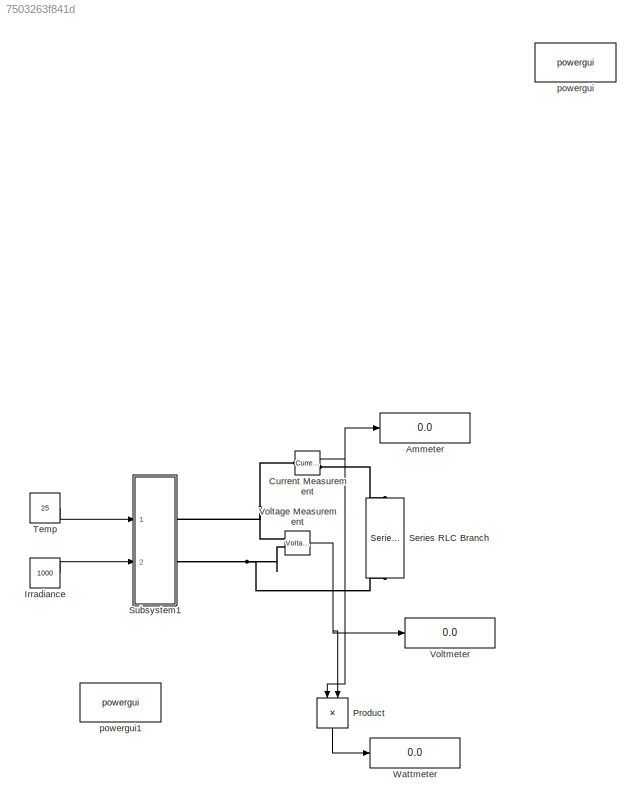
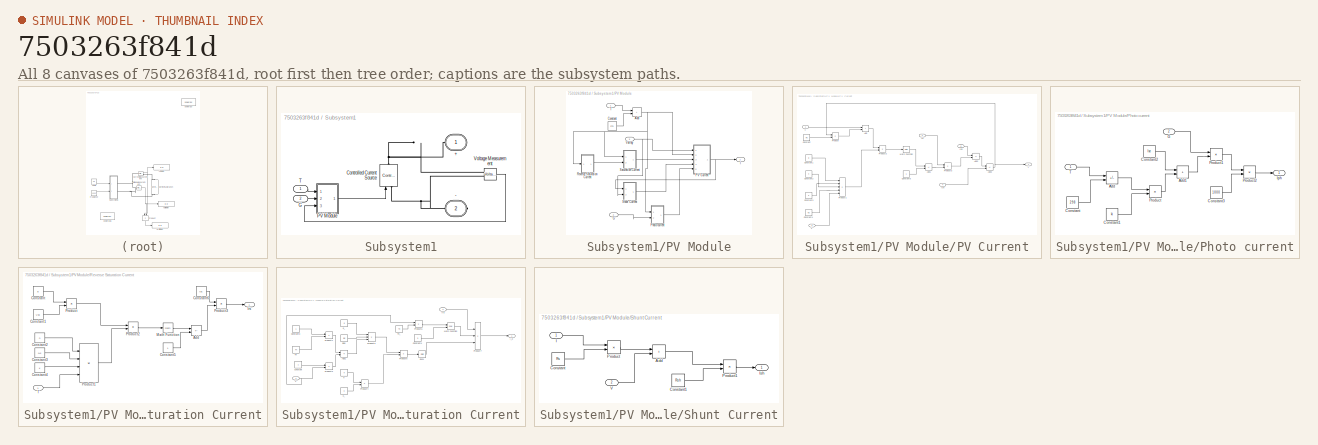
[diagram: thumbnail index - all 8 canvases of the model, root first then tree order]
MODEL slx_7503263f841d
KIND model
CONFIG AbsTol = auto
CONFIG EnableMultiTasking = off
CONFIG FixedStep = auto
CONFIG MaxStep = auto
CONFIG MinStep = auto
CONFIG RelTol = 1e-3
CONFIG SampleTimeConstraint = Unconstrained
CONFIG Solver = VariableStepAuto
CONFIG SolverName = VariableStepAuto
CONFIG StartTime = 0.0
CONFIG StopTime = 10.0
BLOCK [Display] Ammeter
  Decimation = 1
  Ports = [1]
BLOCK [Reference] Current Measurement  REF=powerlib/Measurements/Current Measurement
  Ports = [0, 1, 0, 0, 0, 1, 1]
  SourceBlock = powerlib/Measurements/Current Measurement
  SourceProductBaseCode = PS
  SourceType = Current Measurement
  UserDataPersistent = on
BLOCK [Constant] Irradiance
  Value = 1000
BLOCK [Product] Product
  NameLocation = left
  Ports = [2, 1]
BLOCK [Reference] Series RLC Branch  REF=powerlib/Elements/Series RLC Branch
  NameLocation = left
  Ports = [0, 0, 0, 0, 0, 1, 1]
  SourceBlock = powerlib/Elements/Series RLC Branch
  SourceProductBaseCode = PS
  SourceType = Series RLC Branch
BLOCK [SubSystem] Subsystem1
  Ports = [2, 0, 0, 0, 0, 0, 2]
  RequestExecContextInheritance = off
BLOCK [PMIOPort] Subsystem1/+
  NameLocation = top
  Side = Right
BLOCK [PMIOPort] Subsystem1/-
  NameLocation = top
  Port = 2
  Side = Right
BLOCK [Reference] Subsystem1/Controlled Current Source  REF=powerlib/Electrical
Sources/Controlled Current Source
  NameLocation = right
  Ports = [1, 0, 0, 0, 0, 1, 1]
  SourceBlock = powerlib/Electrical\nSources/Controlled Current Source
  SourceProductBaseCode = PS
  SourceType = Controlled Current Source
BLOCK [Inport] Subsystem1/G
  Port = 2
BLOCK [SubSystem] Subsystem1/PV Module
  Ports = [3, 1]
  RequestExecContextInheritance = off
BLOCK [Sum] Subsystem1/PV Module/Add
  IconShape = rectangular
  Ports = [2, 1]
BLOCK [Constant] Subsystem1/PV Module/Constant
  Value = 273
BLOCK [Inport] Subsystem1/PV Module/G
  Port = 2
BLOCK [Outport] Subsystem1/PV Module/I
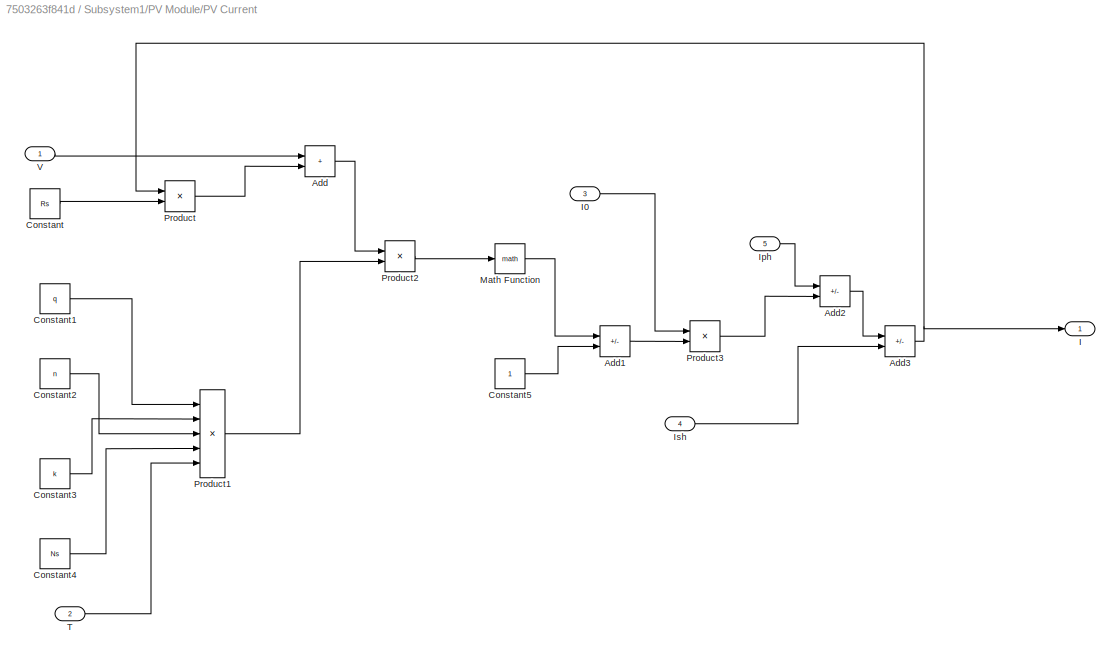
BLOCK [SubSystem] Subsystem1/PV Module/PV Current
  Ports = [5, 1]
  RequestExecContextInheritance = off
BLOCK [Sum] Subsystem1/PV Module/PV Current/Add
  IconShape = rectangular
  Ports = [2, 1]
BLOCK [Sum] Subsystem1/PV Module/PV Current/Add1
  IconShape = rectangular
  Inputs = +-
  Ports = [2, 1]
BLOCK [Sum] Subsystem1/PV Module/PV Current/Add2
  IconShape = rectangular
  Inputs = +-
  Ports = [2, 1]
BLOCK [Sum] Subsystem1/PV Module/PV Current/Add3
  IconShape = rectangular
  Inputs = +-
  Ports = [2, 1]
BLOCK [Constant] Subsystem1/PV Module/PV Current/Constant
  Value = Rs
BLOCK [Constant] Subsystem1/PV Module/PV Current/Constant1
  Value = q
BLOCK [Constant] Subsystem1/PV Module/PV Current/Constant2
  Value = n
BLOCK [Constant] Subsystem1/PV Module/PV Current/Constant3
  Value = k
BLOCK [Constant] Subsystem1/PV Module/PV Current/Constant4
  Value = Ns
BLOCK [Constant] Subsystem1/PV Module/PV Current/Constant5
BLOCK [Outport] Subsystem1/PV Module/PV Current/I
BLOCK [Inport] Subsystem1/PV Module/PV Current/I0
  Port = 3
BLOCK [Inport] Subsystem1/PV Module/PV Current/Iph
  Port = 5
BLOCK [Inport] Subsystem1/PV Module/PV Current/Ish
  Port = 4
BLOCK [Math] Subsystem1/PV Module/PV Current/Math Function
  Ports = [1, 1]
BLOCK [Product] Subsystem1/PV Module/PV Current/Product
  Ports = [2, 1]
BLOCK [Product] Subsystem1/PV Module/PV Current/Product1
  Inputs = *////
  Ports = [5, 1]
BLOCK [Product] Subsystem1/PV Module/PV Current/Product2
  Ports = [2, 1]
BLOCK [Product] Subsystem1/PV Module/PV Current/Product3
  Ports = [2, 1]
BLOCK [Inport] Subsystem1/PV Module/PV Current/T
  Port = 2
BLOCK [Inport] Subsystem1/PV Module/PV Current/V
BLOCK [SubSystem] Subsystem1/PV Module/Photo current
  Ports = [2, 1]
  RequestExecContextInheritance = off
BLOCK [Sum] Subsystem1/PV Module/Photo current/Add
  IconShape = rectangular
  Inputs = +-
  Ports = [2, 1]
BLOCK [Sum] Subsystem1/PV Module/Photo current/Add1
  IconShape = rectangular
  Ports = [2, 1]
BLOCK [Constant] Subsystem1/PV Module/Photo current/Constant
  Value = 298
BLOCK [Constant] Subsystem1/PV Module/Photo current/Constant1
  Value = ki
BLOCK [Constant] Subsystem1/PV Module/Photo current/Constant2
  Value = Isc
BLOCK [Constant] Subsystem1/PV Module/Photo current/Constant3
  Value = 1000
BLOCK [Inport] Subsystem1/PV Module/Photo current/G
  Port = 2
BLOCK [Outport] Subsystem1/PV Module/Photo current/Iph
BLOCK [Product] Subsystem1/PV Module/Photo current/Product
  Ports = [2, 1]
BLOCK [Product] Subsystem1/PV Module/Photo current/Product1
  Ports = [2, 1]
BLOCK [Product] Subsystem1/PV Module/Photo current/Product2
  Inputs = */
  Ports = [2, 1]
BLOCK [Inport] Subsystem1/PV Module/Photo current/T
BLOCK [SubSystem] Subsystem1/PV Module/Reverse Saturation Current
  Ports = [1, 1]
  RequestExecContextInheritance = off
BLOCK [Sum] Subsystem1/PV Module/Reverse Saturation Current/Add
  IconShape = rectangular
  Inputs = +-
  Ports = [2, 1]
BLOCK [Constant] Subsystem1/PV Module/Reverse Saturation Current/Constant
  Value = q
BLOCK [Constant] Subsystem1/PV Module/Reverse Saturation Current/Constant1
  Value = Voc
BLOCK [Constant] Subsystem1/PV Module/Reverse Saturation Current/Constant2
  Value = n
BLOCK [Constant] Subsystem1/PV Module/Reverse Saturation Current/Constant3
  Value = Ns
BLOCK [Constant] Subsystem1/PV Module/Reverse Saturation Current/Constant4
  Value = k
BLOCK [Constant] Subsystem1/PV Module/Reverse Saturation Current/Constant5
BLOCK [Constant] Subsystem1/PV Module/Reverse Saturation Current/Constant6
  Value = Isc
BLOCK [Outport] Subsystem1/PV Module/Reverse Saturation Current/Irs
BLOCK [Math] Subsystem1/PV Module/Reverse Saturation Current/Math Function
  Ports = [1, 1]
BLOCK [Product] Subsystem1/PV Module/Reverse Saturation Current/Product
  Ports = [2, 1]
BLOCK [Product] Subsystem1/PV Module/Reverse Saturation Current/Product1
  Inputs = 4
  Ports = [4, 1]
BLOCK [Product] Subsystem1/PV Module/Reverse Saturation Current/Product2
  Inputs = */
  Ports = [2, 1]
BLOCK [Product] Subsystem1/PV Module/Reverse Saturation Current/Product3
  Inputs = */
  Ports = [2, 1]
BLOCK [Inport] Subsystem1/PV Module/Reverse Saturation Current/T
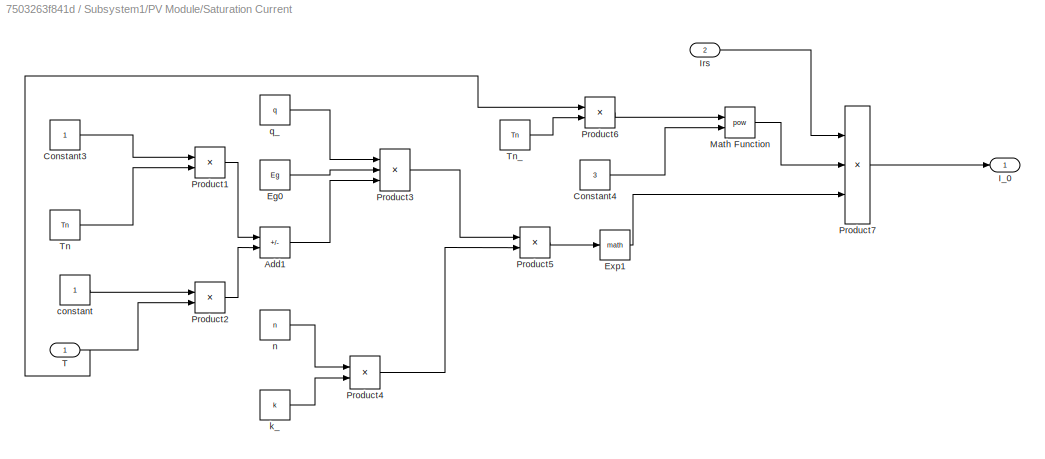
BLOCK [SubSystem] Subsystem1/PV Module/Saturation Current
  Ports = [2, 1]
  RequestExecContextInheritance = off
BLOCK [Sum] Subsystem1/PV Module/Saturation Current/Add1
  IconShape = rectangular
  Inputs = +-
  Ports = [2, 1]
BLOCK [Constant] Subsystem1/PV Module/Saturation Current/Constant3
BLOCK [Constant] Subsystem1/PV Module/Saturation Current/Constant4
  Value = 3
BLOCK [Constant] Subsystem1/PV Module/Saturation Current/Eg0
  Value = Eg
BLOCK [Math] Subsystem1/PV Module/Saturation Current/Exp1
  Ports = [1, 1]
BLOCK [Outport] Subsystem1/PV Module/Saturation Current/I_0
BLOCK [Inport] Subsystem1/PV Module/Saturation Current/Irs
  Port = 2
BLOCK [Math] Subsystem1/PV Module/Saturation Current/Math Function
  Operator = pow
  Ports = [2, 1]
BLOCK [Product] Subsystem1/PV Module/Saturation Current/Product1
  Inputs = */
  Ports = [2, 1]
BLOCK [Product] Subsystem1/PV Module/Saturation Current/Product2
  Inputs = */
  Ports = [2, 1]
BLOCK [Product] Subsystem1/PV Module/Saturation Current/Product3
  Inputs = ***
  Ports = [3, 1]
BLOCK [Product] Subsystem1/PV Module/Saturation Current/Product4
  Inputs = **
  Ports = [2, 1]
BLOCK [Product] Subsystem1/PV Module/Saturation Current/Product5
  Inputs = */
  Ports = [2, 1]
BLOCK [Product] Subsystem1/PV Module/Saturation Current/Product6
  Inputs = */
  Ports = [2, 1]
BLOCK [Product] Subsystem1/PV Module/Saturation Current/Product7
  Inputs = 3
  Ports = [3, 1]
BLOCK [Inport] Subsystem1/PV Module/Saturation Current/T
BLOCK [Constant] Subsystem1/PV Module/Saturation Current/Tn
  Value = Tn
BLOCK [Constant] Subsystem1/PV Module/Saturation Current/Tn_
  Value = Tn
BLOCK [Constant] Subsystem1/PV Module/Saturation Current/constant
BLOCK [Constant] Subsystem1/PV Module/Saturation Current/k_
  Value = k
BLOCK [Constant] Subsystem1/PV Module/Saturation Current/n
  Value = n
BLOCK [Constant] Subsystem1/PV Module/Saturation Current/q_
  Value = q
BLOCK [SubSystem] Subsystem1/PV Module/Shunt Current
  Ports = [2, 1]
  RequestExecContextInheritance = off
BLOCK [Sum] Subsystem1/PV Module/Shunt Current/Add
  IconShape = rectangular
  Ports = [2, 1]
BLOCK [Constant] Subsystem1/PV Module/Shunt Current/Constant
  Value = Rs
BLOCK [Constant] Subsystem1/PV Module/Shunt Current/Constant1
  Value = Rsh
BLOCK [Inport] Subsystem1/PV Module/Shunt Current/I
BLOCK [Outport] Subsystem1/PV Module/Shunt Current/Ish
BLOCK [Product] Subsystem1/PV Module/Shunt Current/Product
  Ports = [2, 1]
BLOCK [Product] Subsystem1/PV Module/Shunt Current/Product1
  Inputs = */
  Ports = [2, 1]
BLOCK [Inport] Subsystem1/PV Module/Shunt Current/V
  Port = 2
BLOCK [Inport] Subsystem1/PV Module/T
BLOCK [Inport] Subsystem1/PV Module/Varray
  Port = 3
BLOCK [Inport] Subsystem1/T
BLOCK [Reference] Subsystem1/Voltage Measurement  REF=powerlib/Measurements/Voltage Measurement
  Ports = [0, 1, 0, 0, 0, 2]
  SourceBlock = powerlib/Measurements/Voltage Measurement
  SourceProductBaseCode = PS
  SourceType = Voltage Measurement
  UserDataPersistent = on
BLOCK [Constant] Temp
  Value = 25
BLOCK [Reference] Voltage Measurement  REF=powerlib/Measurements/Voltage Measurement
  Ports = [0, 1, 0, 0, 0, 2]
  SourceBlock = powerlib/Measurements/Voltage Measurement
  SourceProductBaseCode = PS
  SourceType = Voltage Measurement
  UserDataPersistent = on
BLOCK [Display] Voltmeter
  Decimation = 1
  Ports = [1]
BLOCK [Display] Wattmeter
  Decimation = 1
  Ports = [1]
BLOCK [Reference] powergui  REF=powerlib/powergui
  Ports = []
  Priority = 1
  SourceBlock = powerlib/powergui
  SourceProductBaseCode = PS
  SourceType = PSB option menu block
BLOCK [Reference] powergui1  REF=powerlib/powergui
  Ports = []
  Priority = 1
  SourceBlock = powerlib/powergui
  SourceProductBaseCode = PS
  SourceType = PSB option menu block
NET Current Measurement:1 -> Ammeter:1, Product:1
LINE Irradiance:1 -> Subsystem1:2
LINE Product:1 -> Wattmeter:1
LINE Subsystem1/G:1 -> Subsystem1/PV Module:2
NET Subsystem1/PV Module/Add:1 -> Subsystem1/PV Module/PV Current:2, Subsystem1/PV Module/Photo current:1, Subsystem1/PV Module/Reverse Saturation Current:1, Subsystem1/PV Module/Saturation Current:1
LINE Subsystem1/PV Module/Constant:1 -> Subsystem1/PV Module/Add:2
LINE Subsystem1/PV Module/G:1 -> Subsystem1/PV Module/Photo current:2
LINE Subsystem1/PV Module/PV Current/Add1:1 -> Subsystem1/PV Module/PV Current/Product3:2
LINE Subsystem1/PV Module/PV Current/Add2:1 -> Subsystem1/PV Module/PV Current/Add3:1
NET Subsystem1/PV Module/PV Current/Add3:1 -> Subsystem1/PV Module/PV Current/I:1, Subsystem1/PV Module/PV Current/Product:1
LINE Subsystem1/PV Module/PV Current/Add:1 -> Subsystem1/PV Module/PV Current/Product2:1
LINE Subsystem1/PV Module/PV Current/Constant1:1 -> Subsystem1/PV Module/PV Current/Product1:1
LINE Subsystem1/PV Module/PV Current/Constant2:1 -> Subsystem1/PV Module/PV Current/Product1:3
LINE Subsystem1/PV Module/PV Current/Constant3:1 -> Subsystem1/PV Module/PV Current/Product1:2
LINE Subsystem1/PV Module/PV Current/Constant4:1 -> Subsystem1/PV Module/PV Current/Product1:4
LINE Subsystem1/PV Module/PV Current/Constant5:1 -> Subsystem1/PV Module/PV Current/Add1:2
LINE Subsystem1/PV Module/PV Current/Constant:1 -> Subsystem1/PV Module/PV Current/Product:2
LINE Subsystem1/PV Module/PV Current/I0:1 -> Subsystem1/PV Module/PV Current/Product3:1
LINE Subsystem1/PV Module/PV Current/Iph:1 -> Subsystem1/PV Module/PV Current/Add2:1
LINE Subsystem1/PV Module/PV Current/Ish:1 -> Subsystem1/PV Module/PV Current/Add3:2
LINE Subsystem1/PV Module/PV Current/Math Function:1 -> Subsystem1/PV Module/PV Current/Add1:1
LINE Subsystem1/PV Module/PV Current/Product1:1 -> Subsystem1/PV Module/PV Current/Product2:2
LINE Subsystem1/PV Module/PV Current/Product2:1 -> Subsystem1/PV Module/PV Current/Math Function:1
LINE Subsystem1/PV Module/PV Current/Product3:1 -> Subsystem1/PV Module/PV Current/Add2:2
LINE Subsystem1/PV Module/PV Current/Product:1 -> Subsystem1/PV Module/PV Current/Add:2
LINE Subsystem1/PV Module/PV Current/T:1 -> Subsystem1/PV Module/PV Current/Product1:5
LINE Subsystem1/PV Module/PV Current/V:1 -> Subsystem1/PV Module/PV Current/Add:1
NET Subsystem1/PV Module/PV Current:1 -> Subsystem1/PV Module/I:1, Subsystem1/PV Module/Shunt Current:1
LINE Subsystem1/PV Module/Photo current/Add1:1 -> Subsystem1/PV Module/Photo current/Product1:2
LINE Subsystem1/PV Module/Photo current/Add:1 -> Subsystem1/PV Module/Photo current/Product:1
LINE Subsystem1/PV Module/Photo current/Constant1:1 -> Subsystem1/PV Module/Photo current/Product:2
LINE Subsystem1/PV Module/Photo current/Constant2:1 -> Subsystem1/PV Module/Photo current/Add1:1
LINE Subsystem1/PV Module/Photo current/Constant3:1 -> Subsystem1/PV Module/Photo current/Product2:2
LINE Subsystem1/PV Module/Photo current/Constant:1 -> Subsystem1/PV Module/Photo current/Add:2
LINE Subsystem1/PV Module/Photo current/G:1 -> Subsystem1/PV Module/Photo current/Product1:1
LINE Subsystem1/PV Module/Photo current/Product1:1 -> Subsystem1/PV Module/Photo current/Product2:1
LINE Subsystem1/PV Module/Photo current/Product2:1 -> Subsystem1/PV Module/Photo current/Iph:1
LINE Subsystem1/PV Module/Photo current/Product:1 -> Subsystem1/PV Module/Photo current/Add1:2
LINE Subsystem1/PV Module/Photo current/T:1 -> Subsystem1/PV Module/Photo current/Add:1
LINE Subsystem1/PV Module/Photo current:1 -> Subsystem1/PV Module/PV Current:5
LINE Subsystem1/PV Module/Reverse Saturation Current/Add:1 -> Subsystem1/PV Module/Reverse Saturation Current/Product3:2
LINE Subsystem1/PV Module/Reverse Saturation Current/Constant1:1 -> Subsystem1/PV Module/Reverse Saturation Current/Product:2
LINE Subsystem1/PV Module/Reverse Saturation Current/Constant2:1 -> Subsystem1/PV Module/Reverse Saturation Current/Product1:1
LINE Subsystem1/PV Module/Reverse Saturation Current/Constant3:1 -> Subsystem1/PV Module/Reverse Saturation Current/Product1:2
LINE Subsystem1/PV Module/Reverse Saturation Current/Constant4:1 -> Subsystem1/PV Module/Reverse Saturation Current/Product1:3
LINE Subsystem1/PV Module/Reverse Saturation Current/Constant5:1 -> Subsystem1/PV Module/Reverse Saturation Current/Add:2
LINE Subsystem1/PV Module/Reverse Saturation Current/Constant6:1 -> Subsystem1/PV Module/Reverse Saturation Current/Product3:1
LINE Subsystem1/PV Module/Reverse Saturation Current/Constant:1 -> Subsystem1/PV Module/Reverse Saturation Current/Product:1
LINE Subsystem1/PV Module/Reverse Saturation Current/Math Function:1 -> Subsystem1/PV Module/Reverse Saturation Current/Add:1
LINE Subsystem1/PV Module/Reverse Saturation Current/Product1:1 -> Subsystem1/PV Module/Reverse Saturation Current/Product2:2
LINE Subsystem1/PV Module/Reverse Saturation Current/Product2:1 -> Subsystem1/PV Module/Reverse Saturation Current/Math Function:1
LINE Subsystem1/PV Module/Reverse Saturation Current/Product3:1 -> Subsystem1/PV Module/Reverse Saturation Current/Irs:1
LINE Subsystem1/PV Module/Reverse Saturation Current/Product:1 -> Subsystem1/PV Module/Reverse Saturation Current/Product2:1
LINE Subsystem1/PV Module/Reverse Saturation Current/T:1 -> Subsystem1/PV Module/Reverse Saturation Current/Product1:4
LINE Subsystem1/PV Module/Reverse Saturation Current:1 -> Subsystem1/PV Module/Saturation Current:2
LINE Subsystem1/PV Module/Saturation Current/Add1:1 -> Subsystem1/PV Module/Saturation Current/Product3:3
LINE Subsystem1/PV Module/Saturation Current/Constant3:1 -> Subsystem1/PV Module/Saturation Current/Product1:1
LINE Subsystem1/PV Module/Saturation Current/Constant4:1 -> Subsystem1/PV Module/Saturation Current/Math Function:2
LINE Subsystem1/PV Module/Saturation Current/Eg0:1 -> Subsystem1/PV Module/Saturation Current/Product3:2
LINE Subsystem1/PV Module/Saturation Current/Exp1:1 -> Subsystem1/PV Module/Saturation Current/Product7:3
LINE Subsystem1/PV Module/Saturation Current/Irs:1 -> Subsystem1/PV Module/Saturation Current/Product7:1
LINE Subsystem1/PV Module/Saturation Current/Math Function:1 -> Subsystem1/PV Module/Saturation Current/Product7:2
LINE Subsystem1/PV Module/Saturation Current/Product1:1 -> Subsystem1/PV Module/Saturation Current/Add1:1
LINE Subsystem1/PV Module/Saturation Current/Product2:1 -> Subsystem1/PV Module/Saturation Current/Add1:2
LINE Subsystem1/PV Module/Saturation Current/Product3:1 -> Subsystem1/PV Module/Saturation Current/Product5:1
LINE Subsystem1/PV Module/Saturation Current/Product4:1 -> Subsystem1/PV Module/Saturation Current/Product5:2
LINE Subsystem1/PV Module/Saturation Current/Product5:1 -> Subsystem1/PV Module/Saturation Current/Exp1:1
LINE Subsystem1/PV Module/Saturation Current/Product6:1 -> Subsystem1/PV Module/Saturation Current/Math Function:1
LINE Subsystem1/PV Module/Saturation Current/Product7:1 -> Subsystem1/PV Module/Saturation Current/I_0:1
NET Subsystem1/PV Module/Saturation Current/T:1 -> Subsystem1/PV Module/Saturation Current/Product2:2, Subsystem1/PV Module/Saturation Current/Product6:1
LINE Subsystem1/PV Module/Saturation Current/Tn:1 -> Subsystem1/PV Module/Saturation Current/Product1:2
LINE Subsystem1/PV Module/Saturation Current/Tn_:1 -> Subsystem1/PV Module/Saturation Current/Product6:2
LINE Subsystem1/PV Module/Saturation Current/constant:1 -> Subsystem1/PV Module/Saturation Current/Product2:1
LINE Subsystem1/PV Module/Saturation Current/k_:1 -> Subsystem1/PV Module/Saturation Current/Product4:2
LINE Subsystem1/PV Module/Saturation Current/n:1 -> Subsystem1/PV Module/Saturation Current/Product4:1
LINE Subsystem1/PV Module/Saturation Current/q_:1 -> Subsystem1/PV Module/Saturation Current/Product3:1
LINE Subsystem1/PV Module/Saturation Current:1 -> Subsystem1/PV Module/PV Current:3
LINE Subsystem1/PV Module/Shunt Current/Add:1 -> Subsystem1/PV Module/Shunt Current/Product1:1
LINE Subsystem1/PV Module/Shunt Current/Constant1:1 -> Subsystem1/PV Module/Shunt Current/Product1:2
LINE Subsystem1/PV Module/Shunt Current/Constant:1 -> Subsystem1/PV Module/Shunt Current/Product:2
LINE Subsystem1/PV Module/Shunt Current/I:1 -> Subsystem1/PV Module/Shunt Current/Product:1
LINE Subsystem1/PV Module/Shunt Current/Product1:1 -> Subsystem1/PV Module/Shunt Current/Ish:1
LINE Subsystem1/PV Module/Shunt Current/Product:1 -> Subsystem1/PV Module/Shunt Current/Add:1
LINE Subsystem1/PV Module/Shunt Current/V:1 -> Subsystem1/PV Module/Shunt Current/Add:2
LINE Subsystem1/PV Module/Shunt Current:1 -> Subsystem1/PV Module/PV Current:4
LINE Subsystem1/PV Module/T:1 -> Subsystem1/PV Module/Add:1
NET Subsystem1/PV Module/Varray:1 -> Subsystem1/PV Module/PV Current:1, Subsystem1/PV Module/Shunt Current:2
LINE Subsystem1/PV Module:1 -> Subsystem1/Controlled Current Source:1
LINE Subsystem1/T:1 -> Subsystem1/PV Module:1
LINE Subsystem1/Voltage Measurement:1 -> Subsystem1/PV Module:3
LINE Temp:1 -> Subsystem1:1
NET Voltage Measurement:1 -> Product:2, Voltmeter:1
PNET net1: Current Measurement:LConn1 -- Subsystem1:RConn1 -- Voltage Measurement:LConn1
PLINE Current Measurement:RConn1 -- Series RLC Branch:LConn1
PNET net2: Series RLC Branch:RConn1 -- Subsystem1:RConn2 -- Voltage Measurement:LConn2
PNET net3: Subsystem1/+:RConn1 -- Subsystem1/Controlled Current Source:RConn1 -- Subsystem1/Voltage Measurement:LConn1
PNET net4: Subsystem1/-:RConn1 -- Subsystem1/Controlled Current Source:LConn1 -- Subsystem1/Voltage Measurement:LConn2
note: NET lines group one-source signal fan-out (src -> all destinations, sorted); 1:1 wires keep LINE; PNET lines group multi-terminal physical nets as a canonical sorted terminal list (undirected conserving connections); 2-terminal nets keep the pairwise PLINE form
